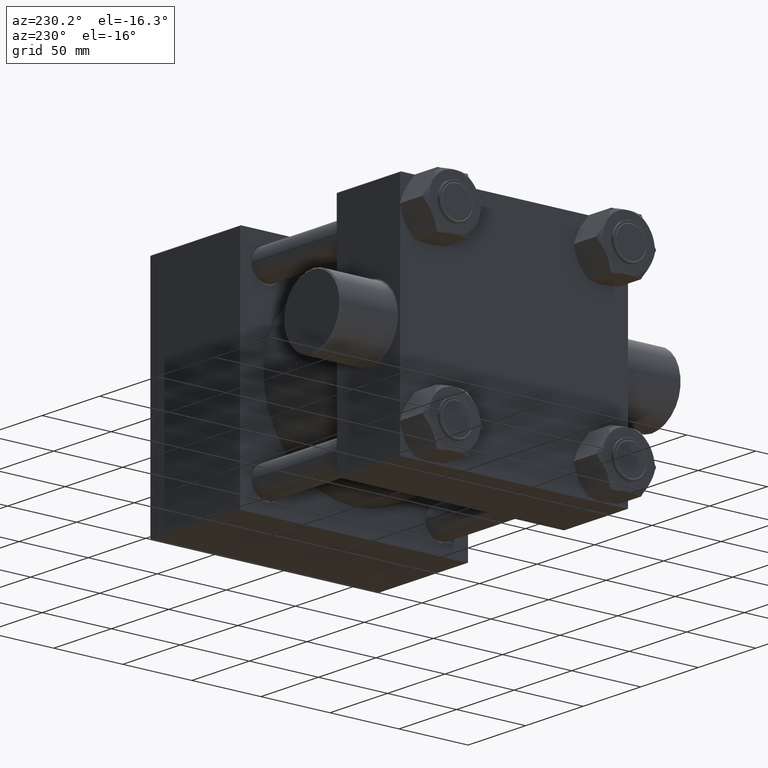
[diagram: clean part render]
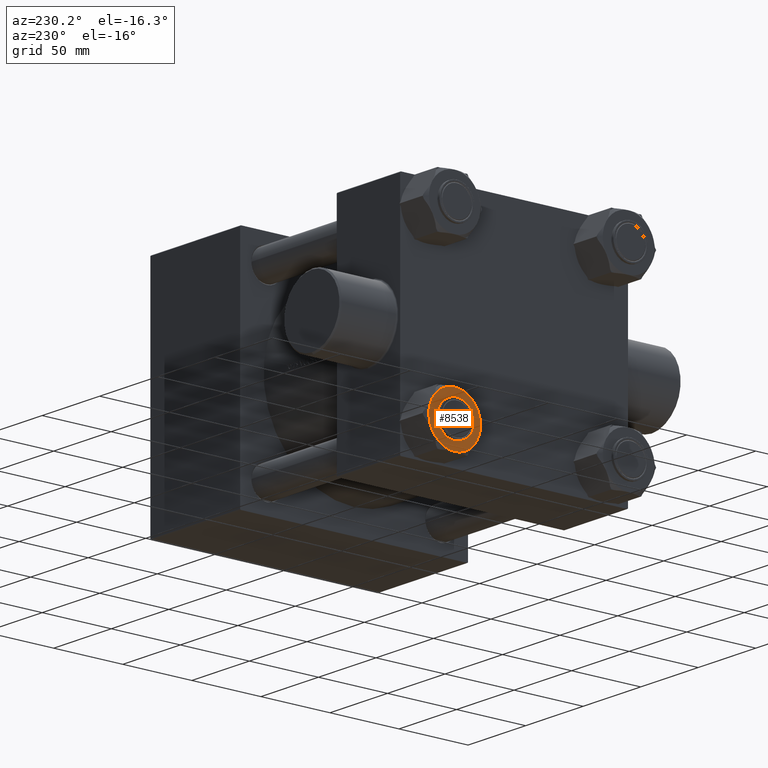
[diagram: same view with one face highlighted and labeled with its STEP entity id]
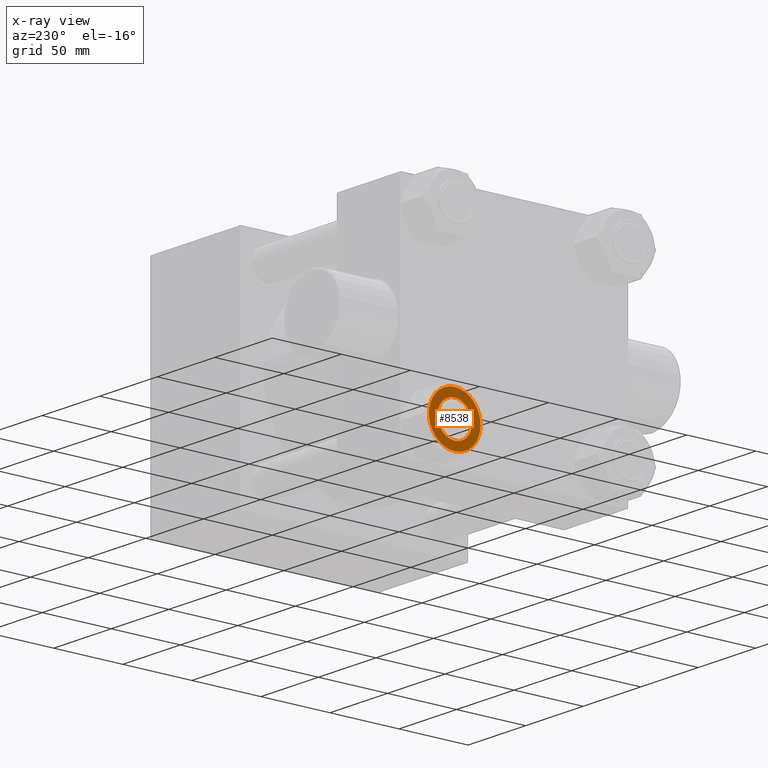
[diagram: x-ray of the same camera — body ghosted, the highlighted face saturated]
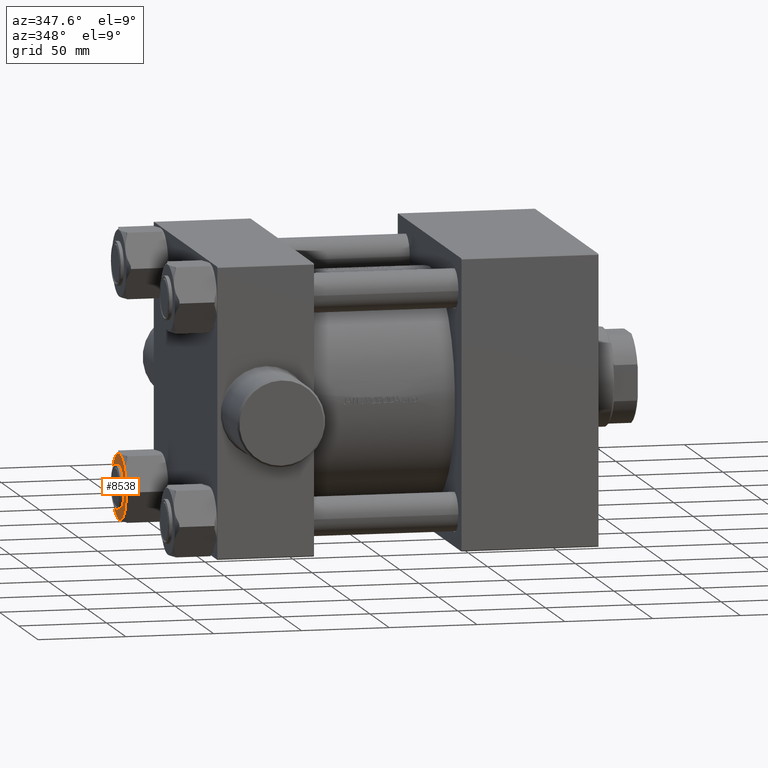
[diagram: same view with one face highlighted and labeled with its STEP entity id]
A machine part, auxiliary view. The second image highlights one B-rep face of the part: STEP entity #8538.
The next image is the same camera in x-ray: the body ghosted, the highlighted face saturated — about 0% of this face is hidden behind the body in this view.
A second angle (auxiliary view) of the same face is appended — the face is thin or edge-on in the first view.
In plain terms, the highlighted planar face has unit normal (1, -0, 0).
Its self-contained STEP definition (entity closure, byte-faithful):
#1257 = VERTEX_POINT ( 'NONE', #5933 ) ;
#1704 = DIRECTION ( 'NONE',  ( 0.000000000000000000, -0.000000000000000000, -1.000000000000000000 ) ) ;
#1876 = CARTESIAN_POINT ( 'NONE',  ( 0.000000000000000000, 0.000000000000000000, 0.000000000000000000 ) ) ;
#2167 = CARTESIAN_POINT ( 'NONE',  ( 0.000000000000000000, 0.000000000000000000, 0.000000000000000000 ) ) ;
#2253 = DIRECTION ( 'NONE',  ( 0.000000000000000000, 0.000000000000000000, 1.000000000000000000 ) ) ;
#3112 = CARTESIAN_POINT ( 'NONE',  ( 0.000000000000000000, 0.000000000000000000, 0.000000000000000000 ) ) ;
#5319 = ORIENTED_EDGE ( 'NONE', *, *, #39839, .F. ) ;
#5601 = CARTESIAN_POINT ( 'NONE',  ( 0.000000000000000000, 0.000000000000000000, 0.000000000000000000 ) ) ;
#5933 = CARTESIAN_POINT ( 'NONE',  ( -16.21500000000001052, 9.361734614909790864, 0.000000000000000000 ) ) ;
#6765 = AXIS2_PLACEMENT_3D ( 'NONE', #3112, #39351, #21332 ) ;
#7529 = VERTEX_POINT ( 'NONE', #40595 ) ;
#7760 = CIRCLE ( 'NONE', #16804, 18.72346922981957462 ) ;
#8160 = AXIS2_PLACEMENT_3D ( 'NONE', #30765, #23418, #13247 ) ;
#8436 = DIRECTION ( 'NONE',  ( -1.000000000000000000, 0.000000000000000000, 0.000000000000000000 ) ) ;
#8538 = ADVANCED_FACE ( 'NONE', ( #41222, #37668 ), #19633, .F. ) ;
#8723 = VERTEX_POINT ( 'NONE', #32667 ) ;
#9304 = CARTESIAN_POINT ( 'NONE',  ( 3.004629197474320035E-15, -18.72346922981957462, 0.000000000000000000 ) ) ;
#9439 = DIRECTION ( 'NONE',  ( 0.000000000000000000, -0.000000000000000000, -1.000000000000000000 ) ) ;
#9751 = ORIENTED_EDGE ( 'NONE', *, *, #28223, .F. ) ;
#9824 = CIRCLE ( 'NONE', #37042, 18.72346922981957462 ) ;
#10751 = VERTEX_POINT ( 'NONE', #23142 ) ;
#11101 = ORIENTED_EDGE ( 'NONE', *, *, #23730, .F. ) ;
#11128 = ORIENTED_EDGE ( 'NONE', *, *, #28038, .F. ) ;
#12125 = CIRCLE ( 'NONE', #34849, 18.72346922981957462 ) ;
#12214 = CIRCLE ( 'NONE', #22076, 18.72346922981957462 ) ;
#12736 = CIRCLE ( 'NONE', #39264, 18.72346922981957462 ) ;
#13148 = CIRCLE ( 'NONE', #18416, 18.72346922981957462 ) ;
#13247 = DIRECTION ( 'NONE',  ( -1.000000000000000000, 0.000000000000000000, -0.000000000000000000 ) ) ;
#13823 = CARTESIAN_POINT ( 'NONE',  ( -16.21500000000001762, -9.361734614909776653, 0.000000000000000000 ) ) ;
#14045 = EDGE_CURVE ( 'NONE', #10751, #8723, #9824, .T. ) ;
#14393 = VERTEX_POINT ( 'NONE', #13823 ) ;
#14919 = CARTESIAN_POINT ( 'NONE',  ( 0.000000000000000000, 0.000000000000000000, 0.000000000000000000 ) ) ;
#16398 = CARTESIAN_POINT ( 'NONE',  ( 18.72346922981957462, 0.000000000000000000, 0.000000000000000000 ) ) ;
#16666 = DIRECTION ( 'NONE',  ( 1.000000000000000000, 0.000000000000000000, 0.000000000000000000 ) ) ;
#16754 = ORIENTED_EDGE ( 'NONE', *, *, #14045, .T. ) ;
#16804 = AXIS2_PLACEMENT_3D ( 'NONE', #5601, #40897, #8436 ) ;
#17682 = EDGE_CURVE ( 'NONE', #7529, #35835, #34915, .T. ) ;
#18416 = AXIS2_PLACEMENT_3D ( 'NONE', #2167, #1704, #38412 ) ;
#18853 = DIRECTION ( 'NONE',  ( 1.000000000000000000, 0.000000000000000000, 0.000000000000000000 ) ) ;
#19633 = PLANE ( 'NONE',  #8160 ) ;
#19800 = DIRECTION ( 'NONE',  ( 0.000000000000000000, 0.000000000000000000, 1.000000000000000000 ) ) ;
#21289 = CIRCLE ( 'NONE', #25797, 12.50000000000000000 ) ;
#21332 = DIRECTION ( 'NONE',  ( -1.000000000000000000, 0.000000000000000000, 0.000000000000000000 ) ) ;
#21609 = ORIENTED_EDGE ( 'NONE', *, *, #33309, .F. ) ;
#22076 = AXIS2_PLACEMENT_3D ( 'NONE', #29618, #22958, #26734 ) ;
#22643 = CARTESIAN_POINT ( 'NONE',  ( 16.21500000000001052, -9.361734614909789087, 0.000000000000000000 ) ) ;
#22958 = DIRECTION ( 'NONE',  ( 0.000000000000000000, -0.000000000000000000, -1.000000000000000000 ) ) ;
#23142 = CARTESIAN_POINT ( 'NONE',  ( 16.21500000000001052, 9.361734614909781982, 0.000000000000000000 ) ) ;
#23339 = CIRCLE ( 'NONE', #6765, 18.72346922981957462 ) ;
#23418 = DIRECTION ( 'NONE',  ( 0.000000000000000000, 0.000000000000000000, -1.000000000000000000 ) ) ;
#23730 = EDGE_CURVE ( 'NONE', #1257, #8723, #7760, .T. ) ;
#25061 = AXIS2_PLACEMENT_3D ( 'NONE', #37593, #19800, #18853 ) ;
#25797 = AXIS2_PLACEMENT_3D ( 'NONE', #34692, #2253, #16666 ) ;
#26228 = CARTESIAN_POINT ( 'NONE',  ( 12.50000000000000000, 1.530808498934191521E-15, 0.000000000000000000 ) ) ;
#26734 = DIRECTION ( 'NONE',  ( -1.000000000000000000, 0.000000000000000000, 0.000000000000000000 ) ) ;
#27606 = DIRECTION ( 'NONE',  ( 1.000000000000000000, 0.000000000000000000, 0.000000000000000000 ) ) ;
#28038 = EDGE_CURVE ( 'NONE', #33164, #45872, #23339, .T. ) ;
#28223 = EDGE_CURVE ( 'NONE', #14393, #1257, #12736, .T. ) ;
#29157 = DIRECTION ( 'NONE',  ( 0.000000000000000000, -0.000000000000000000, -1.000000000000000000 ) ) ;
#29618 = CARTESIAN_POINT ( 'NONE',  ( 0.000000000000000000, 0.000000000000000000, 0.000000000000000000 ) ) ;
#30765 = CARTESIAN_POINT ( 'NONE',  ( 0.000000000000000000, 0.000000000000000000, 0.000000000000000000 ) ) ;
#31600 = ORIENTED_EDGE ( 'NONE', *, *, #44481, .F. ) ;
#32667 = CARTESIAN_POINT ( 'NONE',  ( -3.004629197474320824E-15, 18.72346922981957462, 0.000000000000000000 ) ) ;
#33164 = VERTEX_POINT ( 'NONE', #16398 ) ;
#33309 = EDGE_CURVE ( 'NONE', #45872, #37146, #12125, .T. ) ;
#34240 = EDGE_CURVE ( 'NONE', #35835, #7529, #21289, .T. ) ;
#34310 = DIRECTION ( 'NONE',  ( -1.000000000000000000, 0.000000000000000000, 0.000000000000000000 ) ) ;
#34692 = CARTESIAN_POINT ( 'NONE',  ( 0.000000000000000000, 0.000000000000000000, 0.000000000000000000 ) ) ;
#34849 = AXIS2_PLACEMENT_3D ( 'NONE', #14919, #29157, #46706 ) ;
#34915 = CIRCLE ( 'NONE', #25061, 12.50000000000000000 ) ;
#35835 = VERTEX_POINT ( 'NONE', #26228 ) ;
#36084 = EDGE_LOOP ( 'NONE', ( #46217, #43528 ) ) ;
#36268 = DIRECTION ( 'NONE',  ( 0.000000000000000000, 0.000000000000000000, 1.000000000000000000 ) ) ;
#37042 = AXIS2_PLACEMENT_3D ( 'NONE', #41368, #36268, #27606 ) ;
#37146 = VERTEX_POINT ( 'NONE', #9304 ) ;
#37593 = CARTESIAN_POINT ( 'NONE',  ( 0.000000000000000000, 0.000000000000000000, 0.000000000000000000 ) ) ;
#37668 = FACE_OUTER_BOUND ( 'NONE', #41539, .T. ) ;
#38412 = DIRECTION ( 'NONE',  ( -1.000000000000000000, 0.000000000000000000, 0.000000000000000000 ) ) ;
#39264 = AXIS2_PLACEMENT_3D ( 'NONE', #1876, #9439, #34310 ) ;
#39351 = DIRECTION ( 'NONE',  ( 0.000000000000000000, -0.000000000000000000, -1.000000000000000000 ) ) ;
#39839 = EDGE_CURVE ( 'NONE', #10751, #33164, #12214, .T. ) ;
#40595 = CARTESIAN_POINT ( 'NONE',  ( -12.50000000000000000, 0.000000000000000000, 0.000000000000000000 ) ) ;
#40897 = DIRECTION ( 'NONE',  ( 0.000000000000000000, -0.000000000000000000, -1.000000000000000000 ) ) ;
#41222 = FACE_BOUND ( 'NONE', #36084, .T. ) ;
#41368 = CARTESIAN_POINT ( 'NONE',  ( 0.000000000000000000, 0.000000000000000000, 0.000000000000000000 ) ) ;
#41539 = EDGE_LOOP ( 'NONE', ( #11101, #9751, #31600, #21609, #11128, #5319, #16754 ) ) ;
#43528 = ORIENTED_EDGE ( 'NONE', *, *, #34240, .F. ) ;
#44481 = EDGE_CURVE ( 'NONE', #37146, #14393, #13148, .T. ) ;
#45872 = VERTEX_POINT ( 'NONE', #22643 ) ;
#46217 = ORIENTED_EDGE ( 'NONE', *, *, #17682, .F. ) ;
#46706 = DIRECTION ( 'NONE',  ( -1.000000000000000000, 0.000000000000000000, 0.000000000000000000 ) ) ;